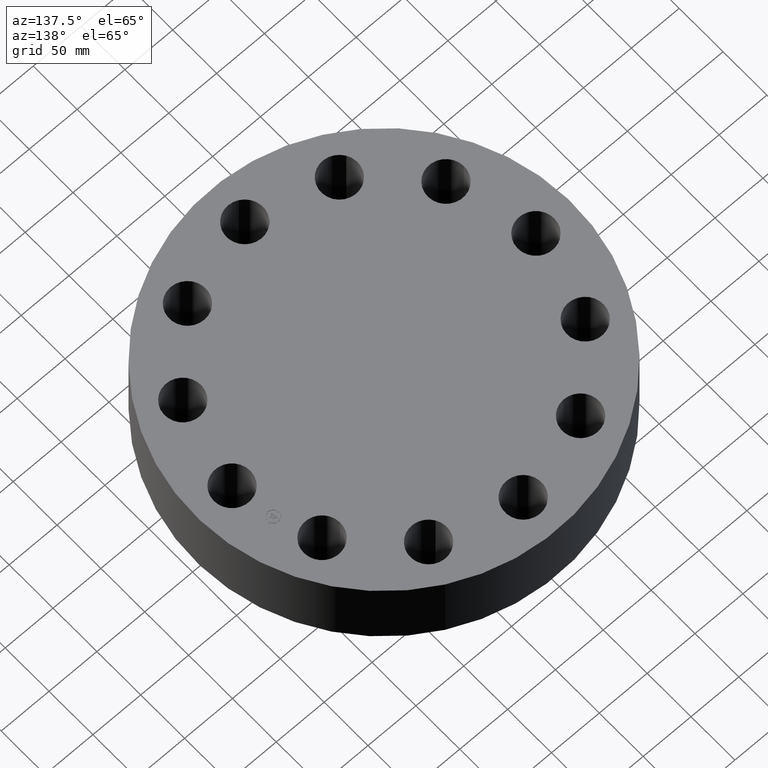
[diagram: clean part render]
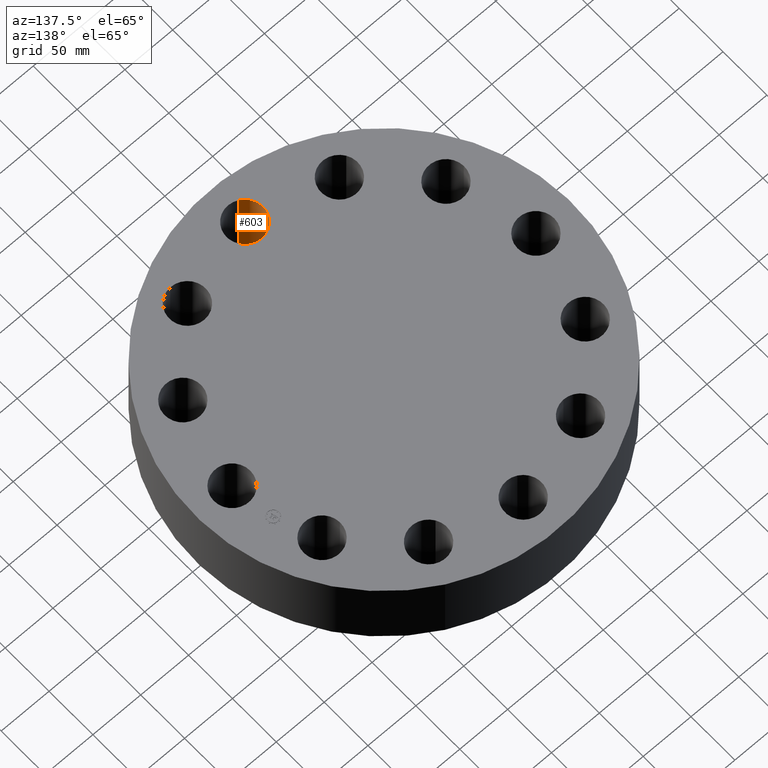
[diagram: same view with one face highlighted and labeled with its STEP entity id]
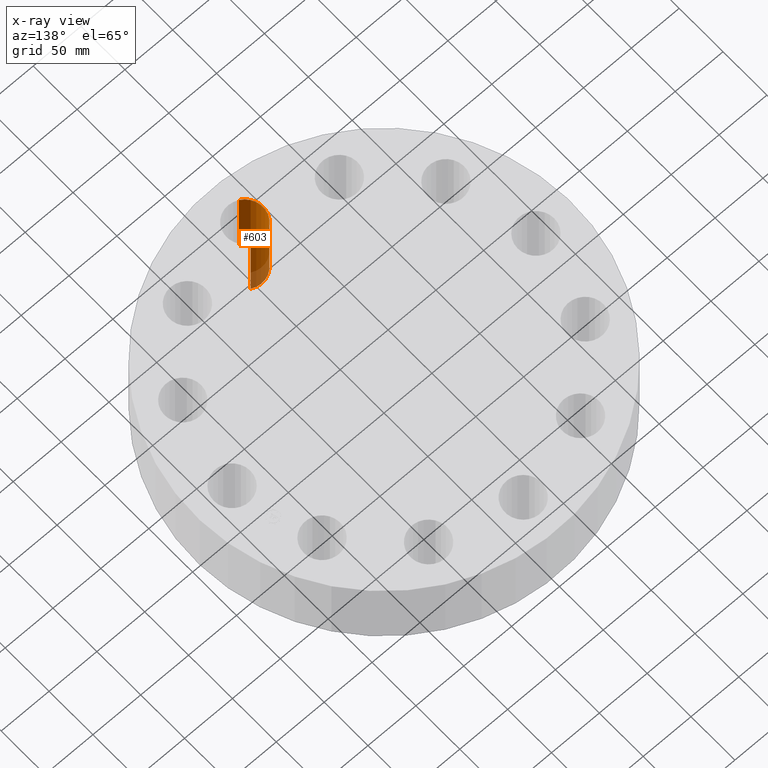
[diagram: x-ray of the same camera — body ghosted, the highlighted face saturated]
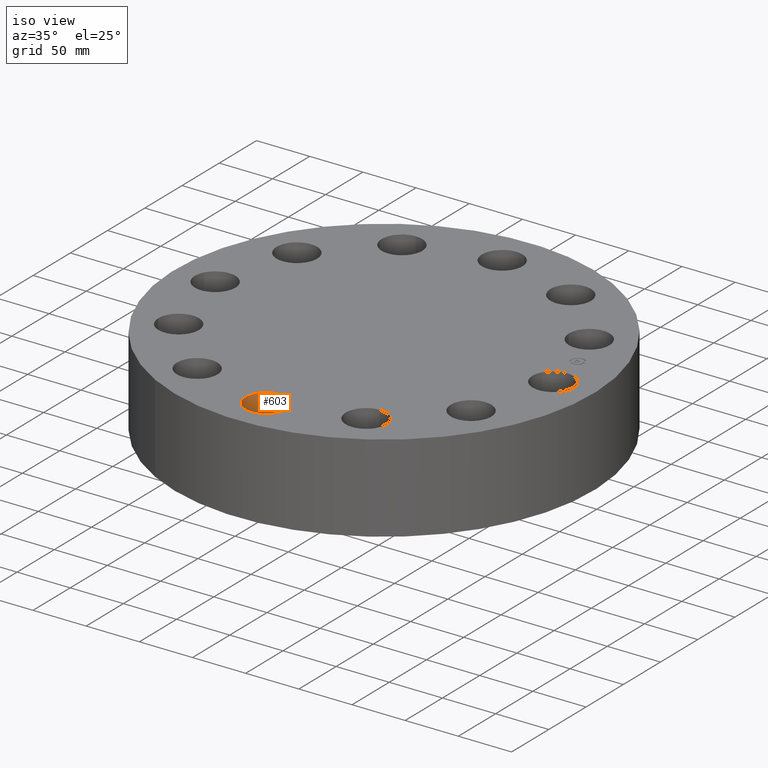
[diagram: same view with one face highlighted and labeled with its STEP entity id]
A machine part, auxiliary view. The second image highlights one B-rep face of the part: STEP entity #603.
The next image is the same camera in x-ray: the body ghosted, the highlighted face saturated — about 16% of this face is hidden behind the body in this view.
A second angle (iso view) of the same face is appended — the face is thin or edge-on in the first view.
In plain terms, the highlighted cylindrical surface (edge-blend (fillet) strip) has radius 19.05 mm, axis along (0, -0, -1).
Its self-contained STEP definition (entity closure, byte-faithful):
#280=AXIS2_PLACEMENT_3D('Circle Axis2P3D',#278,#279,$) ;
#564=AXIS2_PLACEMENT_3D('Cylinder Axis2P3D',#561,#562,#563) ;
#594=AXIS2_PLACEMENT_3D('Circle Axis2P3D',#592,#593,$) ;
#273=CARTESIAN_POINT('Vertex',(0.359569153955,-5.5918130786,0.)) ;
#275=CARTESIAN_POINT('Vertex',(-0.359569153955,-6.90818692145,0.)) ;
#278=CARTESIAN_POINT('Axis2P3D Location',(-9.09159012291E-016,-6.25000000002,0.)) ;
#561=CARTESIAN_POINT('Axis2P3D Location',(-7.3626281347E-016,-6.25000000003,3.24606299214)) ;
#566=CARTESIAN_POINT('Line Origine',(0.359569153955,-5.5918130786,1.62500000001)) ;
#570=CARTESIAN_POINT('Vertex',(0.359569153955,-5.5918130786,3.25000000001)) ;
#573=CARTESIAN_POINT('Line Origine',(-0.359569153955,-6.90818692145,1.62500000001)) ;
#577=CARTESIAN_POINT('Vertex',(-0.359569153955,-6.90818692145,3.25000000001)) ;
#592=CARTESIAN_POINT('Axis2P3D Location',(-7.3626281347E-016,-6.25000000003,3.25000000001)) ;
#279=DIRECTION('Axis2P3D Direction',(0.,0.,-0.0393700787402)) ;
#562=DIRECTION('Axis2P3D Direction',(0.,-0.,-0.0393700787402)) ;
#563=DIRECTION('Axis2P3D XDirection',(-0.0188750212049,-0.0345504945626,0.)) ;
#567=DIRECTION('Vector Direction',(0.,0.,-0.0393700787402)) ;
#574=DIRECTION('Vector Direction',(0.,0.,-0.0393700787402)) ;
#593=DIRECTION('Axis2P3D Direction',(0.,-0.,-0.0393700787402)) ;
#568=VECTOR('Line Direction',#567,0.0393700787402) ;
#575=VECTOR('Line Direction',#574,0.0393700787402) ;
#598=ORIENTED_EDGE('',*,*,#579,.F.) ;
#599=ORIENTED_EDGE('',*,*,#282,.T.) ;
#600=ORIENTED_EDGE('',*,*,#572,.T.) ;
#601=ORIENTED_EDGE('',*,*,#596,.F.) ;
#603=ADVANCED_FACE('PartBody',(#602),#565,.F.) ;
#281=CIRCLE('generated circle',#280,0.750000000003) ;
#595=CIRCLE('generated circle',#594,0.750000000003) ;
#565=CYLINDRICAL_SURFACE('generated cylinder',#564,0.750000000003) ;
#282=EDGE_CURVE('',#276,#274,#281,.T.) ;
#572=EDGE_CURVE('',#274,#571,#569,.F.) ;
#579=EDGE_CURVE('',#276,#578,#576,.F.) ;
#596=EDGE_CURVE('',#578,#571,#595,.T.) ;
#597=EDGE_LOOP('',(#598,#599,#600,#601)) ;
#602=FACE_OUTER_BOUND('',#597,.T.) ;
#569=LINE('Line',#566,#568) ;
#576=LINE('Line',#573,#575) ;
#274=VERTEX_POINT('',#273) ;
#276=VERTEX_POINT('',#275) ;
#571=VERTEX_POINT('',#570) ;
#578=VERTEX_POINT('',#577) ;